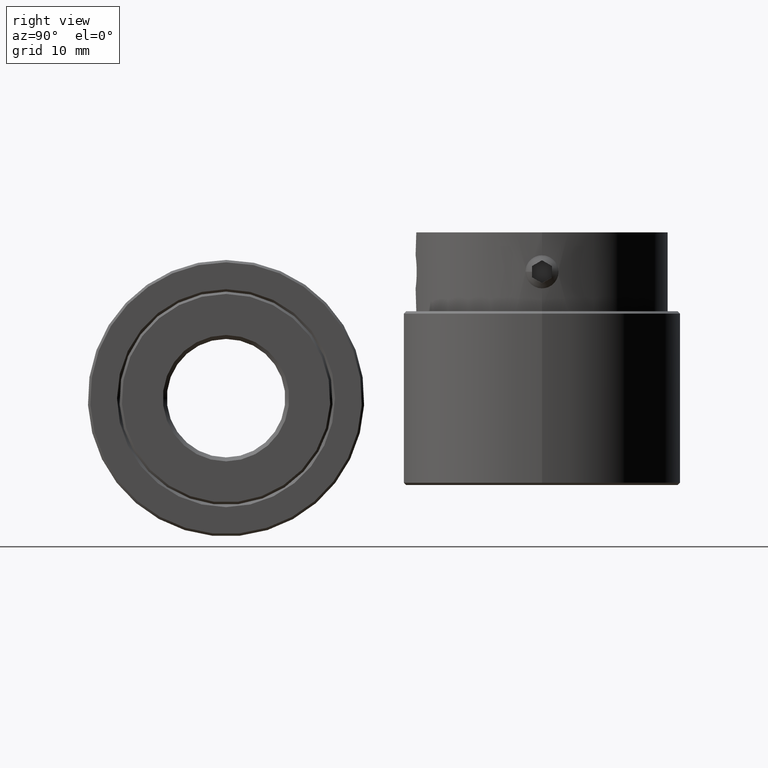
[diagram: clean part render]
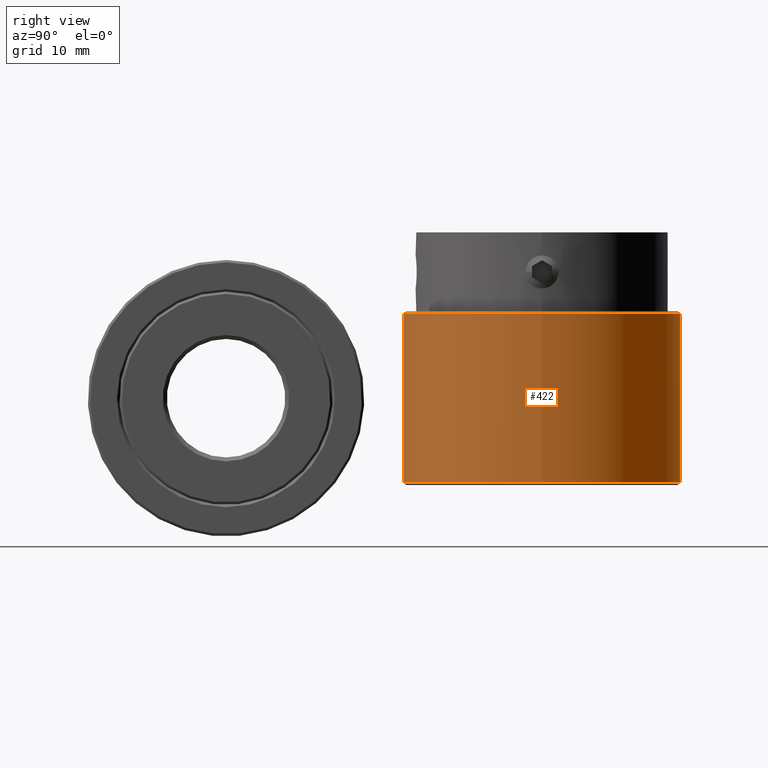
[diagram: same view with one face highlighted and labeled with its STEP entity id]
A machine part, right view. The second image highlights one B-rep face of the part: STEP entity #422.
In plain terms, the highlighted cylindrical surface (bore or boss wall) has radius 17.5 mm, axis along (-0, 0, -1).
Its self-contained STEP definition (entity closure, byte-faithful):
#422 = ADVANCED_FACE( '', ( #526, #527 ), #528, .T. );
#526 = FACE_OUTER_BOUND( '', #726, .T. );
#527 = FACE_OUTER_BOUND( '', #727, .T. );
#528 = CYLINDRICAL_SURFACE( '', #728, 17.5000000000000 );
#726 = EDGE_LOOP( '', ( #948 ) );
#727 = EDGE_LOOP( '', ( #949 ) );
#728 = AXIS2_PLACEMENT_3D( '', #950, #951, #952 );
#948 = ORIENTED_EDGE( '', *, *, #1328, .T. );
#949 = ORIENTED_EDGE( '', *, *, #1329, .T. );
#950 = CARTESIAN_POINT( '', ( 0.000000000000000, 0.000000000000000, 0.000000000000000 ) );
#951 = DIRECTION( '', ( -0.000000000000000, 0.000000000000000, -1.00000000000000 ) );
#952 = DIRECTION( '', ( 1.00000000000000, 0.000000000000000, 0.000000000000000 ) );
#1328 = EDGE_CURVE( '', #1449, #1449, #1450, .F. );
#1329 = EDGE_CURVE( '', #1451, #1451, #1452, .T. );
#1449 = VERTEX_POINT( '', #1861 );
#1450 = CIRCLE( '', #1862, 17.5000000000000 );
#1451 = VERTEX_POINT( '', #1863 );
#1452 = CIRCLE( '', #1864, 17.5000000000000 );
#1861 = CARTESIAN_POINT( '', ( 17.5000000000000, 0.000000000000000, 21.7000000000000 ) );
#1862 = AXIS2_PLACEMENT_3D( '', #2400, #2401, #2402 );
#1863 = CARTESIAN_POINT( '', ( 17.5000000000000, 0.000000000000000, 0.300000000000000 ) );
#1864 = AXIS2_PLACEMENT_3D( '', #2403, #2404, #2405 );
#2400 = CARTESIAN_POINT( '', ( 0.000000000000000, 0.000000000000000, 21.7000000000000 ) );
#2401 = DIRECTION( '', ( 0.000000000000000, -0.000000000000000, 1.00000000000000 ) );
#2402 = DIRECTION( '', ( 1.00000000000000, 0.000000000000000, 0.000000000000000 ) );
#2403 = CARTESIAN_POINT( '', ( 0.000000000000000, 0.000000000000000, 0.300000000000000 ) );
#2404 = DIRECTION( '', ( 0.000000000000000, -0.000000000000000, 1.00000000000000 ) );
#2405 = DIRECTION( '', ( 1.00000000000000, 0.000000000000000, 0.000000000000000 ) );